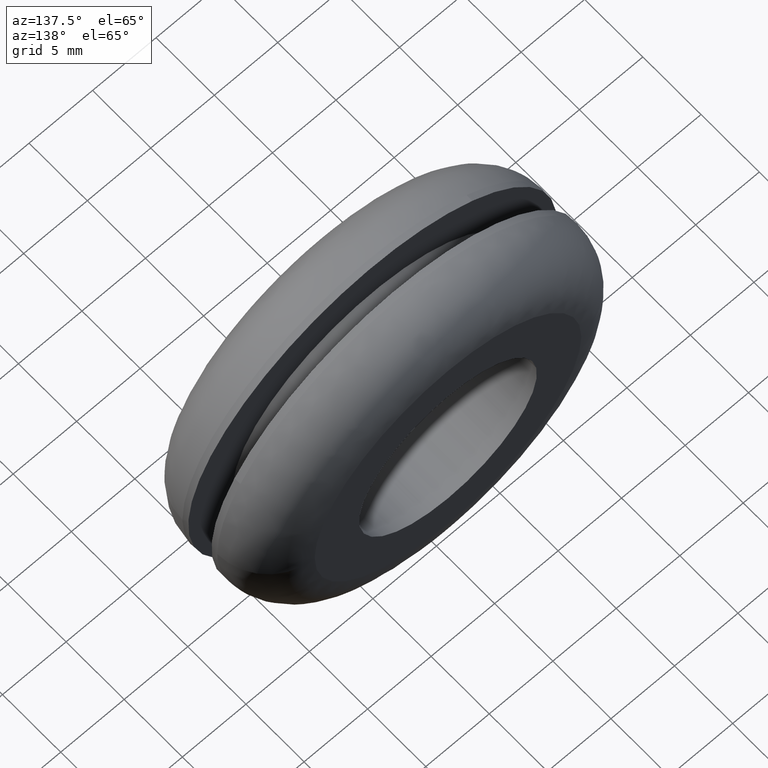
[diagram: clean part render]
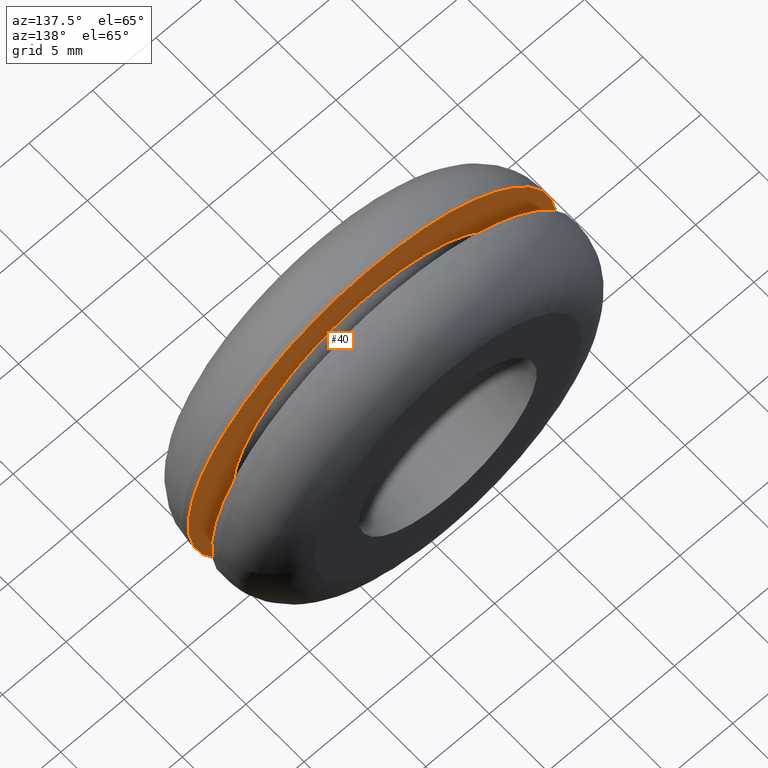
[diagram: same view with one face highlighted and labeled with its STEP entity id]
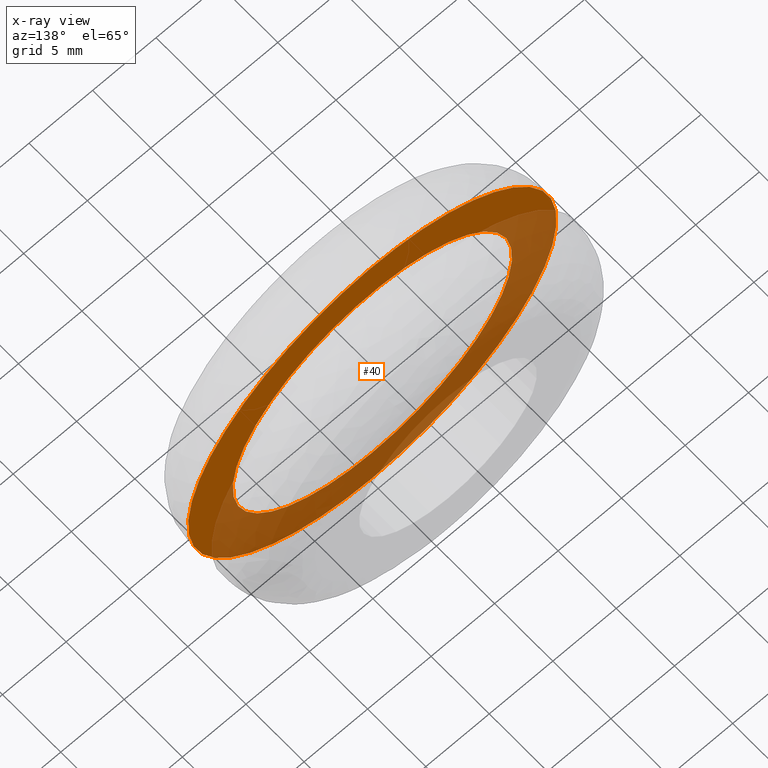
[diagram: x-ray of the same camera — body ghosted, the highlighted face saturated]
A machine part, auxiliary view. The second image highlights one B-rep face of the part: STEP entity #40.
The next image is the same camera in x-ray: the body ghosted, the highlighted face saturated — about 52% of this face is hidden behind the body in this view.
In plain terms, the highlighted planar face has unit normal (0, -1, 0).
Its self-contained STEP definition (entity closure, byte-faithful):
#40=ADVANCED_FACE('',(#57,#58),#56,.F.);
#56=PLANE('',#223);
#57=FACE_OUTER_BOUND('',#224,.T.);
#58=FACE_BOUND('',#225,.T.);
#220=CARTESIAN_POINT('',(-3.01376840517E+001,4.50000000000E+000,3.33500000000E+001));
#221=DIRECTION('',(0.00000000000E+000,-1.00000000000E+000,0.00000000000E+000));
#222=DIRECTION('',(0.00000000000E+000,0.00000000000E+000,-1.00000000000E+000));
#223=AXIS2_PLACEMENT_3D('',#220,#221,#222);
#224=EDGE_LOOP('',(#388,#389,#390));
#225=EDGE_LOOP('',(#391,#392,#393));
#388=ORIENTED_EDGE('',*,*,#490,.F.);
#389=ORIENTED_EDGE('',*,*,#491,.F.);
#390=ORIENTED_EDGE('',*,*,#492,.F.);
#391=ORIENTED_EDGE('',*,*,#493,.T.);
#392=ORIENTED_EDGE('',*,*,#494,.T.);
#393=ORIENTED_EDGE('',*,*,#495,.T.);
#490=EDGE_CURVE('',#541,#542,#543,.T.);
#491=EDGE_CURVE('',#549,#541,#550,.T.);
#492=EDGE_CURVE('',#542,#549,#556,.T.);
#493=EDGE_CURVE('',#562,#563,#564,.T.);
#494=EDGE_CURVE('',#563,#570,#571,.T.);
#495=EDGE_CURVE('',#570,#562,#577,.T.);
#541=VERTEX_POINT('',#886);
#542=VERTEX_POINT('',#887);
#543=CIRCLE('',#891,1.45000000000E+001);
#549=VERTEX_POINT('',#892);
#550=CIRCLE('',#896,1.45000000000E+001);
#556=CIRCLE('',#900,1.45000000000E+001);
#562=VERTEX_POINT('',#901);
#563=VERTEX_POINT('',#902);
#564=CIRCLE('',#906,1.10000000000E+001);
#570=VERTEX_POINT('',#907);
#571=CIRCLE('',#911,1.10000000000E+001);
#577=CIRCLE('',#915,1.10000000000E+001);
#886=CARTESIAN_POINT('',(-7.86956849192E+000,4.50000000000E+000,1.21786654339E+001));
#887=CARTESIAN_POINT('',(1.77635683940E-015,4.50000000000E+000,-1.45000000000E+001));
#888=CARTESIAN_POINT('',(1.20792265079E-013,4.50000000000E+000,1.63424829225E-013));
#889=DIRECTION('',(2.27367811910E-017,-1.00000000000E+000,1.46919699117E-017));
#890=DIRECTION('',(-6.99440505514E-015,-1.46919699117E-017,-1.00000000000E+000));
#891=AXIS2_PLACEMENT_3D('',#888,#889,#890);
#892=CARTESIAN_POINT('',(7.87323524194E+000,4.50000000000E+000,-1.21762952833E+001));
#893=CARTESIAN_POINT('',(1.20792265079E-013,4.50000000000E+000,1.63424829225E-013));
#894=DIRECTION('',(2.27367811910E-017,-1.00000000000E+000,1.46919699117E-017));
#895=DIRECTION('',(-6.99440505514E-015,-1.46919699117E-017,-1.00000000000E+000));
#896=AXIS2_PLACEMENT_3D('',#893,#894,#895);
#897=CARTESIAN_POINT('',(1.20792265079E-013,4.50000000000E+000,1.63424829225E-013));
#898=DIRECTION('',(2.27367811910E-017,-1.00000000000E+000,1.46919699117E-017));
#899=DIRECTION('',(-6.99440505514E-015,-1.46919699117E-017,-1.00000000000E+000));
#900=AXIS2_PLACEMENT_3D('',#897,#898,#899);
#901=CARTESIAN_POINT('',(-3.33066907388E-015,4.50000000000E+000,-1.10000000000E+001));
#902=CARTESIAN_POINT('',(1.09228802215E+001,4.50000000000E+000,-1.30026446040E+000));
#903=CARTESIAN_POINT('',(1.84829929140E-012,4.50000000000E+000,4.07407441116E-012));
#904=DIRECTION('',(-3.92109260369E-014,-1.00000000000E+000,-2.62840248621E-013));
#905=DIRECTION('',(-1.67948988050E-013,2.62840248621E-013,-1.00000000000E+000));
#906=AXIS2_PLACEMENT_3D('',#903,#904,#905);
#907=CARTESIAN_POINT('',(-1.09231047995E+001,4.50000000000E+000,1.29837650117E+000));
#908=CARTESIAN_POINT('',(1.84829929140E-012,4.50000000000E+000,4.07407441116E-012));
#909=DIRECTION('',(-3.92109260369E-014,-1.00000000000E+000,-2.62840248621E-013));
#910=DIRECTION('',(-1.67948988050E-013,2.62840248621E-013,-1.00000000000E+000));
#911=AXIS2_PLACEMENT_3D('',#908,#909,#910);
#912=CARTESIAN_POINT('',(1.84829929140E-012,4.50000000000E+000,4.07407441116E-012));
#913=DIRECTION('',(-3.92109260369E-014,-1.00000000000E+000,-2.62840248621E-013));
#914=DIRECTION('',(-1.67948988050E-013,2.62840248621E-013,-1.00000000000E+000));
#915=AXIS2_PLACEMENT_3D('',#912,#913,#914);